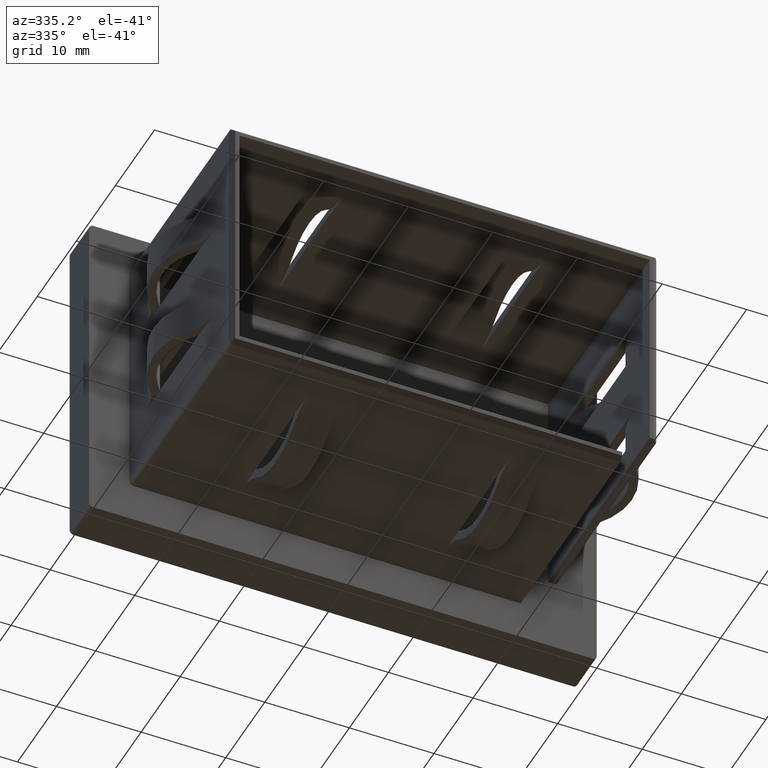
[diagram: clean part render]
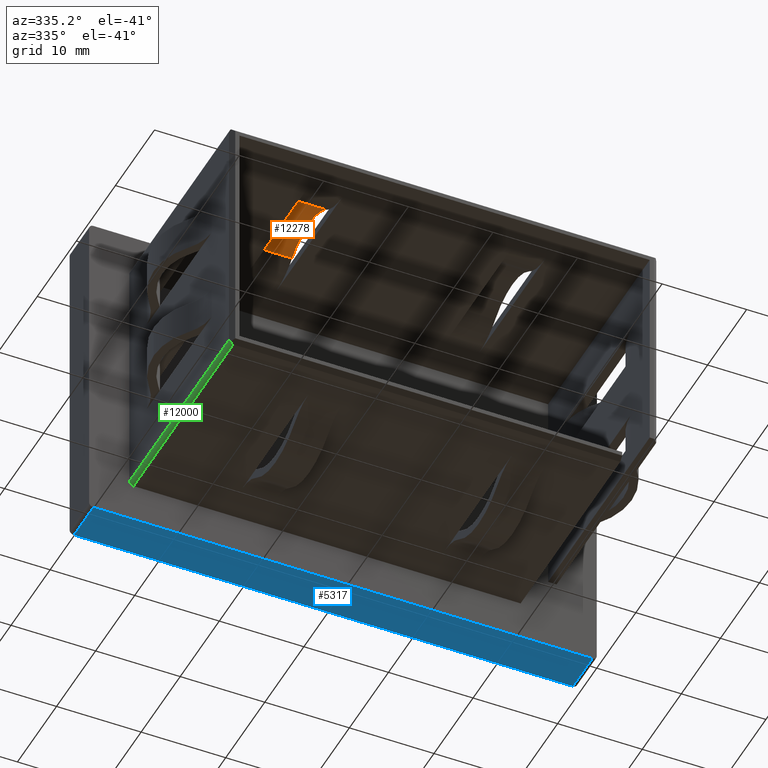
[diagram: same view with three faces highlighted in distinct colors, each labeled with its STEP entity id]
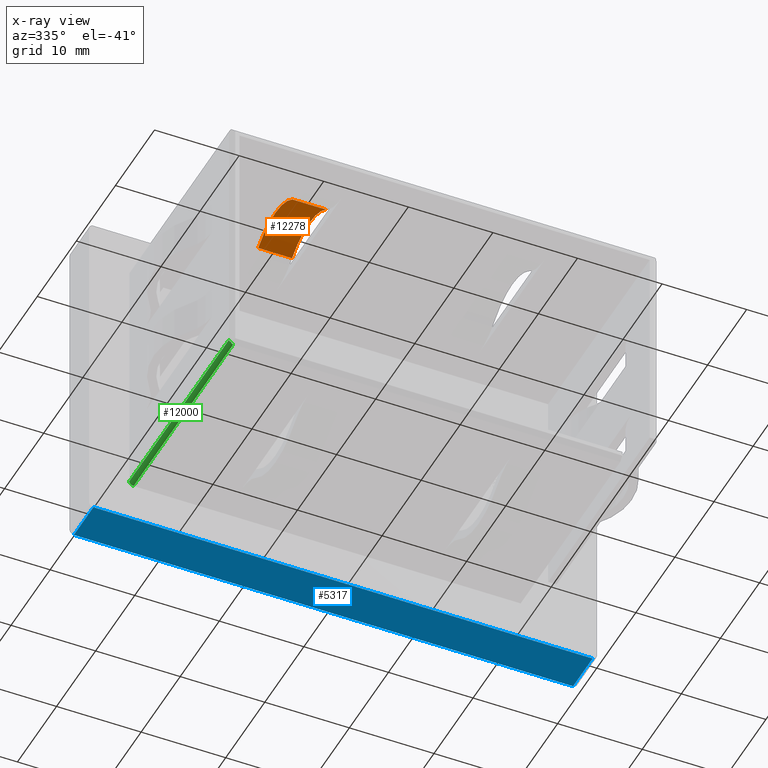
[diagram: x-ray of the same camera — body ghosted, the three highlighted faces saturated]
A machine part, auxiliary view with three faces highlighted in distinct colors.
The next image is the same camera in x-ray (body ghosted, the three faces saturated) — at least one of them is partly hidden behind the body in this view.
Their STEP definitions:

[orange] entity #12278 — the highlighted cylindrical surface (partial cylindrical patch) has radius 6.9657 mm, axis along (1, -0, -0).
#139 = CARTESIAN_POINT ( 'NONE',  ( -9.999999999999996400, -17.37230760964350700, 15.70683256657978400 ) ) ;
#392 = ORIENTED_EDGE ( 'NONE', *, *, #4560, .F. ) ;
#1099 = EDGE_CURVE ( 'NONE', #5561, #12389, #13266, .T. ) ;
#2194 = CIRCLE ( 'NONE', #15159, 6.965686217482340400 ) ;
#3050 = AXIS2_PLACEMENT_3D ( 'NONE', #4438, #6022, #8745 ) ;
#3354 = CARTESIAN_POINT ( 'NONE',  ( -9.999999999999996400, -8.627692234015597700, 15.70683256657978800 ) ) ;
#3581 = DIRECTION ( 'NONE',  ( 1.000000000000000000, -0.0000000000000000000, -1.927470528863118800E-016 ) ) ;
#4438 = CARTESIAN_POINT ( 'NONE',  ( -13.99999999999999800, -12.99999992182954900, 10.28431378251768000 ) ) ;
#4557 = EDGE_CURVE ( 'NONE', #16471, #12389, #16044, .T. ) ;
#4560 = EDGE_CURVE ( 'NONE', #7555, #5561, #5940, .T. ) ;
#4575 = VECTOR ( 'NONE', #3581, 1000.000000000000000 ) ;
#5561 = VERTEX_POINT ( 'NONE', #139 ) ;
#5576 = CARTESIAN_POINT ( 'NONE',  ( -13.99999999999999600, -8.627692234015597700, 15.70683256657978800 ) ) ;
#5626 = AXIS2_PLACEMENT_3D ( 'NONE', #11627, #17393, #13211 ) ;
#5940 = LINE ( 'NONE', #15057, #4575 ) ;
#6022 = DIRECTION ( 'NONE',  ( 1.000000000000000000, -0.0000000000000000000, -1.927470528863118800E-016 ) ) ;
#6630 = CARTESIAN_POINT ( 'NONE',  ( -13.99999999999999600, -8.627692234015597700, 15.70683256657978800 ) ) ;
#7035 = CARTESIAN_POINT ( 'NONE',  ( -13.99999999999999800, -12.99999992182954900, 10.28431378251768000 ) ) ;
#7555 = VERTEX_POINT ( 'NONE', #17132 ) ;
#8418 = VECTOR ( 'NONE', #10830, 1000.000000000000000 ) ;
#8576 = FACE_OUTER_BOUND ( 'NONE', #14004, .T. ) ;
#8745 = DIRECTION ( 'NONE',  ( -2.490384180130067900E-016, 0.0000000000000000000, -1.000000000000000000 ) ) ;
#10830 = DIRECTION ( 'NONE',  ( 1.000000000000000000, -0.0000000000000000000, -1.927470528863118800E-016 ) ) ;
#11297 = DIRECTION ( 'NONE',  ( -2.490384180130067900E-016, 0.0000000000000000000, -1.000000000000000000 ) ) ;
#11627 = CARTESIAN_POINT ( 'NONE',  ( -9.999999999999998200, -12.99999992182954900, 10.28431378251768000 ) ) ;
#12278 = ADVANCED_FACE ( 'NONE', ( #8576 ), #12602, .F. ) ;
#12389 = VERTEX_POINT ( 'NONE', #3354 ) ;
#12602 = CYLINDRICAL_SURFACE ( 'NONE', #3050, 6.965686217482340400 ) ;
#13211 = DIRECTION ( 'NONE',  ( -2.490384180130067900E-016, 0.0000000000000000000, -1.000000000000000000 ) ) ;
#13266 = CIRCLE ( 'NONE', #5626, 6.965686217482340400 ) ;
#14004 = EDGE_LOOP ( 'NONE', ( #17781, #392, #16001, #17146 ) ) ;
#15057 = CARTESIAN_POINT ( 'NONE',  ( -13.99999999999999600, -17.37230760964350700, 15.70683256657978400 ) ) ;
#15159 = AXIS2_PLACEMENT_3D ( 'NONE', #7035, #17125, #11297 ) ;
#16001 = ORIENTED_EDGE ( 'NONE', *, *, #16423, .T. ) ;
#16044 = LINE ( 'NONE', #6630, #8418 ) ;
#16423 = EDGE_CURVE ( 'NONE', #7555, #16471, #2194, .T. ) ;
#16471 = VERTEX_POINT ( 'NONE', #5576 ) ;
#17125 = DIRECTION ( 'NONE',  ( -1.000000000000000000, 0.0000000000000000000, 2.082487031870878100E-016 ) ) ;
#17132 = CARTESIAN_POINT ( 'NONE',  ( -13.99999999999999600, -17.37230760964350700, 15.70683256657978400 ) ) ;
#17146 = ORIENTED_EDGE ( 'NONE', *, *, #4557, .T. ) ;
#17393 = DIRECTION ( 'NONE',  ( -1.000000000000000000, 0.0000000000000000000, 2.082487031870878100E-016 ) ) ;
#17781 = ORIENTED_EDGE ( 'NONE', *, *, #1099, .F. ) ;

[blue] entity #5317 — the highlighted planar face has unit normal (0, 0, 1).
#406 = LINE ( 'NONE', #16994, #10997 ) ;
#1477 = VERTEX_POINT ( 'NONE', #7355 ) ;
#2669 = EDGE_CURVE ( 'NONE', #12697, #12889, #17420, .T. ) ;
#3732 = DIRECTION ( 'NONE',  ( 0.0000000000000000000, 0.0000000000000000000, 1.000000000000000000 ) ) ;
#3950 = AXIS2_PLACEMENT_3D ( 'NONE', #16254, #3732, #9597 ) ;
#4061 = LINE ( 'NONE', #13076, #12850 ) ;
#4396 = VECTOR ( 'NONE', #5351, 1000.000000000000000 ) ;
#5317 = ADVANCED_FACE ( 'NONE', ( #10389 ), #7909, .F. ) ;
#5351 = DIRECTION ( 'NONE',  ( -0.0000000000000000000, 1.000000000000000000, -0.0000000000000000000 ) ) ;
#6505 = VECTOR ( 'NONE', #16767, 1000.000000000000000 ) ;
#6568 = ORIENTED_EDGE ( 'NONE', *, *, #13483, .T. ) ;
#7355 = CARTESIAN_POINT ( 'NONE',  ( 29.50000000000000400, 5.000000000000000000, -19.99999999999999600 ) ) ;
#7404 = CARTESIAN_POINT ( 'NONE',  ( 29.50000000000000400, 0.0000000000000000000, -19.99999999999999600 ) ) ;
#7909 = PLANE ( 'NONE',  #3950 ) ;
#8378 = CARTESIAN_POINT ( 'NONE',  ( -29.49999999999999600, 5.000000000000000000, -19.99999999999999600 ) ) ;
#8662 = CARTESIAN_POINT ( 'NONE',  ( -29.49999999999999600, 0.0000000000000000000, -19.99999999999999600 ) ) ;
#9597 = DIRECTION ( 'NONE',  ( 1.000000000000000000, 0.0000000000000000000, -0.0000000000000000000 ) ) ;
#10003 = VERTEX_POINT ( 'NONE', #7404 ) ;
#10058 = DIRECTION ( 'NONE',  ( 0.0000000000000000000, -1.000000000000000000, 0.0000000000000000000 ) ) ;
#10389 = FACE_OUTER_BOUND ( 'NONE', #11367, .T. ) ;
#10966 = ORIENTED_EDGE ( 'NONE', *, *, #13758, .F. ) ;
#10997 = VECTOR ( 'NONE', #11287, 1000.000000000000000 ) ;
#11287 = DIRECTION ( 'NONE',  ( -1.000000000000000000, -0.0000000000000000000, -0.0000000000000000000 ) ) ;
#11367 = EDGE_LOOP ( 'NONE', ( #10966, #6568, #17599, #12358 ) ) ;
#12358 = ORIENTED_EDGE ( 'NONE', *, *, #2669, .T. ) ;
#12509 = CARTESIAN_POINT ( 'NONE',  ( -29.99999999999999600, 0.0000000000000000000, -19.99999999999999600 ) ) ;
#12697 = VERTEX_POINT ( 'NONE', #8662 ) ;
#12850 = VECTOR ( 'NONE', #10058, 1000.000000000000000 ) ;
#12889 = VERTEX_POINT ( 'NONE', #13660 ) ;
#13076 = CARTESIAN_POINT ( 'NONE',  ( 29.50000000000000400, 5.000000000000000000, -19.99999999999999600 ) ) ;
#13483 = EDGE_CURVE ( 'NONE', #1477, #10003, #4061, .T. ) ;
#13660 = CARTESIAN_POINT ( 'NONE',  ( -29.49999999999999600, 5.000000000000000000, -19.99999999999999600 ) ) ;
#13758 = EDGE_CURVE ( 'NONE', #1477, #12889, #406, .T. ) ;
#14333 = EDGE_CURVE ( 'NONE', #10003, #12697, #18579, .T. ) ;
#16254 = CARTESIAN_POINT ( 'NONE',  ( -29.99999999999999600, 5.000000000000000000, -19.99999999999999600 ) ) ;
#16767 = DIRECTION ( 'NONE',  ( -1.000000000000000000, -0.0000000000000000000, -0.0000000000000000000 ) ) ;
#16994 = CARTESIAN_POINT ( 'NONE',  ( -29.99999999999999600, 5.000000000000000000, -19.99999999999999600 ) ) ;
#17420 = LINE ( 'NONE', #8378, #4396 ) ;
#17599 = ORIENTED_EDGE ( 'NONE', *, *, #14333, .T. ) ;
#18579 = LINE ( 'NONE', #12509, #6505 ) ;

[green] entity #12000 — the highlighted cylindrical surface (edge-blend (fillet) strip) has radius 0.5 mm, axis along (0, 1, 0).
#149 = EDGE_CURVE ( 'NONE', #6852, #14638, #12900, .T. ) ;
#201 = VERTEX_POINT ( 'NONE', #11439 ) ;
#647 = DIRECTION ( 'NONE',  ( 0.0000000000000000000, 1.000000000000000000, 0.0000000000000000000 ) ) ;
#1228 = CARTESIAN_POINT ( 'NONE',  ( -25.24999999999999600, 0.0000000000000000000, -14.74999999999999300 ) ) ;
#2093 = VECTOR ( 'NONE', #11319, 1000.000000000000000 ) ;
#2424 = VERTEX_POINT ( 'NONE', #11395 ) ;
#2720 = CYLINDRICAL_SURFACE ( 'NONE', #6205, 0.5000000000000004400 ) ;
#2739 = LINE ( 'NONE', #4188, #16453 ) ;
#2850 =( BOUNDED_CURVE ( )  B_SPLINE_CURVE ( 3, ( #3301, #14962, #7659, #12039 ),
 .UNSPECIFIED., .F., .F. ) 
 B_SPLINE_CURVE_WITH_KNOTS ( ( 4, 4 ),
 ( 5.497787143782134400, 6.283185307179586200 ),
 .UNSPECIFIED. ) 
 CURVE ( )  GEOMETRIC_REPRESENTATION_ITEM ( )  RATIONAL_B_SPLINE_CURVE ( ( 1.000000000000000000, 0.9492530216741906800, 0.9492530216741906800, 1.000000000000000000 ) ) 
 REPRESENTATION_ITEM ( '' )  );
#3179 = DIRECTION ( 'NONE',  ( 0.0000000000000000000, -1.000000000000000000, -0.0000000000000000000 ) ) ;
#3301 = CARTESIAN_POINT ( 'NONE',  ( -25.10355339059327300, -25.64644660940673000, -15.10355339059326600 ) ) ;
#4188 = CARTESIAN_POINT ( 'NONE',  ( -25.24999999999999600, -26.00000000000000000, -14.74999999999999300 ) ) ;
#4319 = EDGE_LOOP ( 'NONE', ( #11915, #6228, #18400, #8996, #16101 ) ) ;
#5255 = EDGE_CURVE ( 'NONE', #201, #6852, #2850, .T. ) ;
#5360 =( BOUNDED_CURVE ( )  B_SPLINE_CURVE ( 3, ( #16060, #9095, #6076, #16302 ),
 .UNSPECIFIED., .F., .F. ) 
 B_SPLINE_CURVE_WITH_KNOTS ( ( 4, 4 ),
 ( 0.0000000000000000000, 0.7853981633974493900 ),
 .UNSPECIFIED. ) 
 CURVE ( )  GEOMETRIC_REPRESENTATION_ITEM ( )  RATIONAL_B_SPLINE_CURVE ( ( 1.000000000000000000, 0.9492530216741910100, 0.9492530216741910100, 1.000000000000000000 ) ) 
 REPRESENTATION_ITEM ( '' )  );
#6076 = CARTESIAN_POINT ( 'NONE',  ( -25.19857478948782900, -25.55142521051216800, -15.00853199169871000 ) ) ;
#6205 = AXIS2_PLACEMENT_3D ( 'NONE', #12576, #14036, #18061 ) ;
#6228 = ORIENTED_EDGE ( 'NONE', *, *, #11263, .F. ) ;
#6852 = VERTEX_POINT ( 'NONE', #15869 ) ;
#7057 = CARTESIAN_POINT ( 'NONE',  ( -24.74999999999999600, -26.00000000000000000, -15.24999999999999300 ) ) ;
#7659 = CARTESIAN_POINT ( 'NONE',  ( -24.88438055103234300, -25.50000000000000000, -15.24999999999999300 ) ) ;
#8237 = AXIS2_PLACEMENT_3D ( 'NONE', #18039, #647, #10801 ) ;
#8996 = ORIENTED_EDGE ( 'NONE', *, *, #149, .F. ) ;
#9095 = CARTESIAN_POINT ( 'NONE',  ( -25.24999999999999300, -25.49999999999999600, -14.88438055103233500 ) ) ;
#9697 = FACE_OUTER_BOUND ( 'NONE', #4319, .T. ) ;
#10490 = EDGE_CURVE ( 'NONE', #14638, #11106, #12427, .T. ) ;
#10801 = DIRECTION ( 'NONE',  ( 0.0000000000000000000, 0.0000000000000000000, 1.000000000000000000 ) ) ;
#11106 = VERTEX_POINT ( 'NONE', #1228 ) ;
#11263 = EDGE_CURVE ( 'NONE', #11106, #2424, #2739, .T. ) ;
#11319 = DIRECTION ( 'NONE',  ( -0.0000000000000000000, 1.000000000000000000, 0.0000000000000000000 ) ) ;
#11395 = CARTESIAN_POINT ( 'NONE',  ( -25.24999999999999600, -25.50000000000000000, -14.74999999999999300 ) ) ;
#11439 = CARTESIAN_POINT ( 'NONE',  ( -25.10355339059327300, -25.64644660940673000, -15.10355339059326600 ) ) ;
#11915 = ORIENTED_EDGE ( 'NONE', *, *, #16619, .F. ) ;
#12000 = ADVANCED_FACE ( 'NONE', ( #9697 ), #2720, .T. ) ;
#12039 = CARTESIAN_POINT ( 'NONE',  ( -24.74999999999999600, -25.50000000000000000, -15.24999999999999300 ) ) ;
#12427 = CIRCLE ( 'NONE', #8237, 0.5000000000000004400 ) ;
#12576 = CARTESIAN_POINT ( 'NONE',  ( -24.74999999999999600, -26.00000000000000000, -14.74999999999999300 ) ) ;
#12900 = LINE ( 'NONE', #7057, #2093 ) ;
#14036 = DIRECTION ( 'NONE',  ( 0.0000000000000000000, 1.000000000000000000, 0.0000000000000000000 ) ) ;
#14047 = CARTESIAN_POINT ( 'NONE',  ( -24.74999999999999600, 0.0000000000000000000, -15.24999999999999300 ) ) ;
#14638 = VERTEX_POINT ( 'NONE', #14047 ) ;
#14962 = CARTESIAN_POINT ( 'NONE',  ( -25.00853199169871700, -25.55142521051216800, -15.19857478948782200 ) ) ;
#15869 = CARTESIAN_POINT ( 'NONE',  ( -24.74999999999999600, -25.50000000000000000, -15.24999999999999300 ) ) ;
#16060 = CARTESIAN_POINT ( 'NONE',  ( -25.24999999999999600, -25.50000000000000000, -14.74999999999999300 ) ) ;
#16101 = ORIENTED_EDGE ( 'NONE', *, *, #5255, .F. ) ;
#16302 = CARTESIAN_POINT ( 'NONE',  ( -25.10355339059327300, -25.64644660940673000, -15.10355339059326600 ) ) ;
#16453 = VECTOR ( 'NONE', #3179, 1000.000000000000000 ) ;
#16619 = EDGE_CURVE ( 'NONE', #2424, #201, #5360, .T. ) ;
#18039 = CARTESIAN_POINT ( 'NONE',  ( -24.74999999999999600, 0.0000000000000000000, -14.74999999999999300 ) ) ;
#18061 = DIRECTION ( 'NONE',  ( 0.0000000000000000000, 0.0000000000000000000, 1.000000000000000000 ) ) ;
#18400 = ORIENTED_EDGE ( 'NONE', *, *, #10490, .F. ) ;